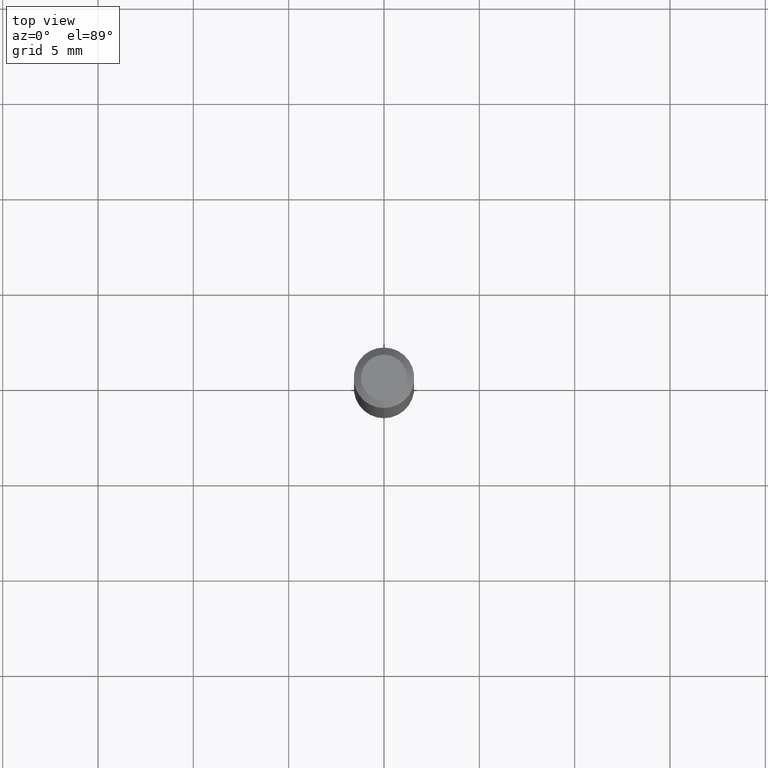
[diagram: clean part render]
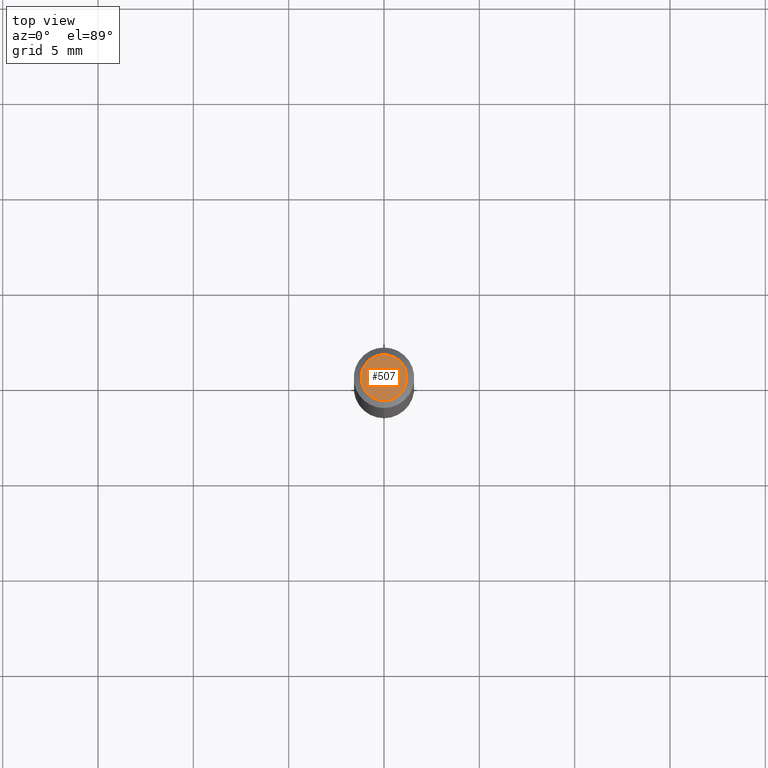
[diagram: same view with one face highlighted and labeled with its STEP entity id]
A machine part, top view. The second image highlights one B-rep face of the part: STEP entity #507.
In plain terms, the highlighted planar face has unit normal (0, -0, -1).
Its self-contained STEP definition (entity closure, byte-faithful):
#18 = PLANE ( 'NONE',  #345 ) ;
#132 = FACE_OUTER_BOUND ( 'NONE', #484, .T. ) ;
#149 = CARTESIAN_POINT ( 'NONE',  ( 1.601786221884812409E-45, -2.286927475842318406E-31, -6.550018799408352352E-17 ) ) ;
#150 = VERTEX_POINT ( 'NONE', #308 ) ;
#159 = EDGE_CURVE ( 'NONE', #288, #150, #177, .T. ) ;
#167 = EDGE_CURVE ( 'NONE', #150, #288, #196, .T. ) ;
#172 = DIRECTION ( 'NONE',  ( -6.982962677686266711E-15, -1.000000000000000000, 3.491482308491833698E-15 ) ) ;
#177 = CIRCLE ( 'NONE', #439, 0.04749999999999999362 ) ;
#196 = CIRCLE ( 'NONE', #263, 0.04749999999999999362 ) ;
#218 = DIRECTION ( 'NONE',  ( -2.445468129083076640E-29, 3.491482308491833698E-15, 1.000000000000000000 ) ) ;
#244 = ORIENTED_EDGE ( 'NONE', *, *, #159, .T. ) ;
#252 = CARTESIAN_POINT ( 'NONE',  ( 3.316907271900976096E-16, 0.04749999999999999362, -1.985955036504038294E-16 ) ) ;
#263 = AXIS2_PLACEMENT_3D ( 'NONE', #149, #388, #172 ) ;
#276 = CARTESIAN_POINT ( 'NONE',  ( -3.773273898774340269E-16, -0.04749999999999999362, 1.003452216592785687E-16 ) ) ;
#284 = DIRECTION ( 'NONE',  ( 6.982962677686265922E-15, 1.000000000000000000, -3.491482308491833304E-15 ) ) ;
#288 = VERTEX_POINT ( 'NONE', #276 ) ;
#296 = CARTESIAN_POINT ( 'NONE',  ( 1.601786221884812409E-45, -2.286927475842318406E-31, -6.550018799408352352E-17 ) ) ;
#308 = CARTESIAN_POINT ( 'NONE',  ( 3.840629472727447874E-16, 0.04749999999999999362, -2.313455976474456528E-16 ) ) ;
#332 = DIRECTION ( 'NONE',  ( 2.445468129083076640E-29, -3.491482308491833304E-15, -1.000000000000000000 ) ) ;
#345 = AXIS2_PLACEMENT_3D ( 'NONE', #252, #332, #284 ) ;
#388 = DIRECTION ( 'NONE',  ( -2.445468129083076640E-29, 3.491482308491833698E-15, 1.000000000000000000 ) ) ;
#408 = DIRECTION ( 'NONE',  ( -6.982962677686266711E-15, -1.000000000000000000, 3.491482308491833698E-15 ) ) ;
#439 = AXIS2_PLACEMENT_3D ( 'NONE', #296, #218, #408 ) ;
#448 = ORIENTED_EDGE ( 'NONE', *, *, #167, .T. ) ;
#484 = EDGE_LOOP ( 'NONE', ( #448, #244 ) ) ;
#507 = ADVANCED_FACE ( 'NONE', ( #132 ), #18, .F. ) ;